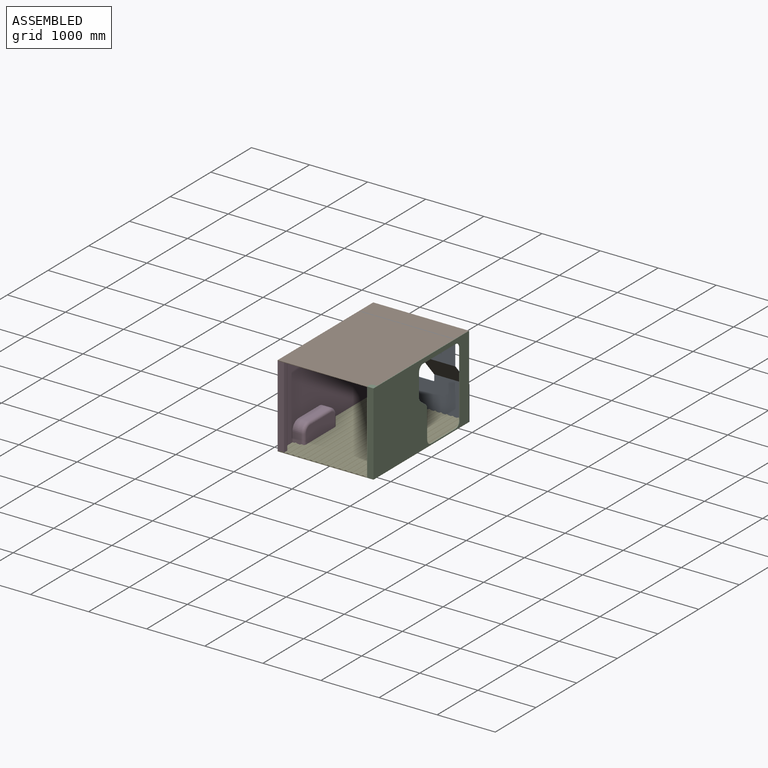
[diagram: assembled view]
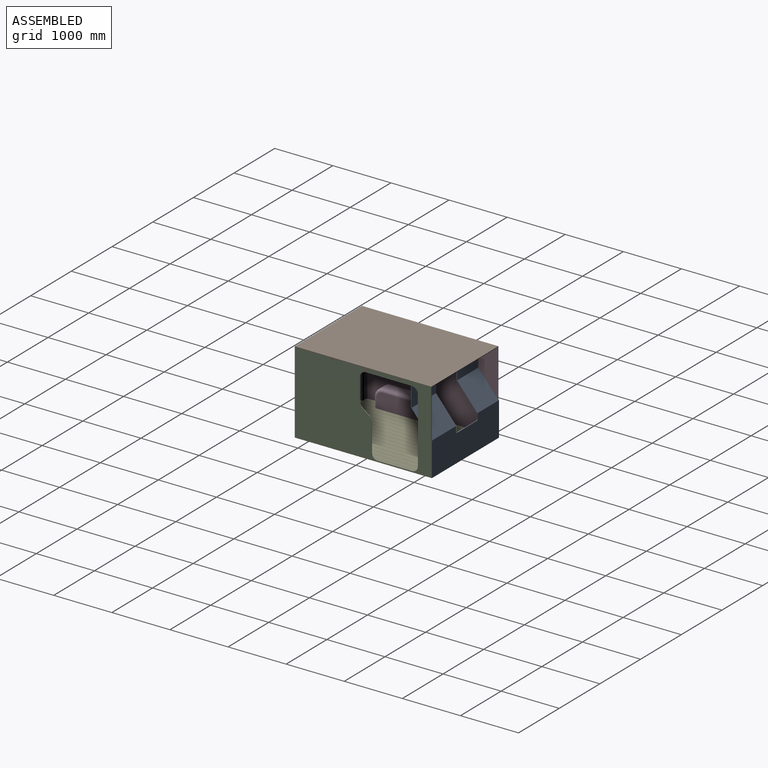
[diagram: assembled view, second angle]
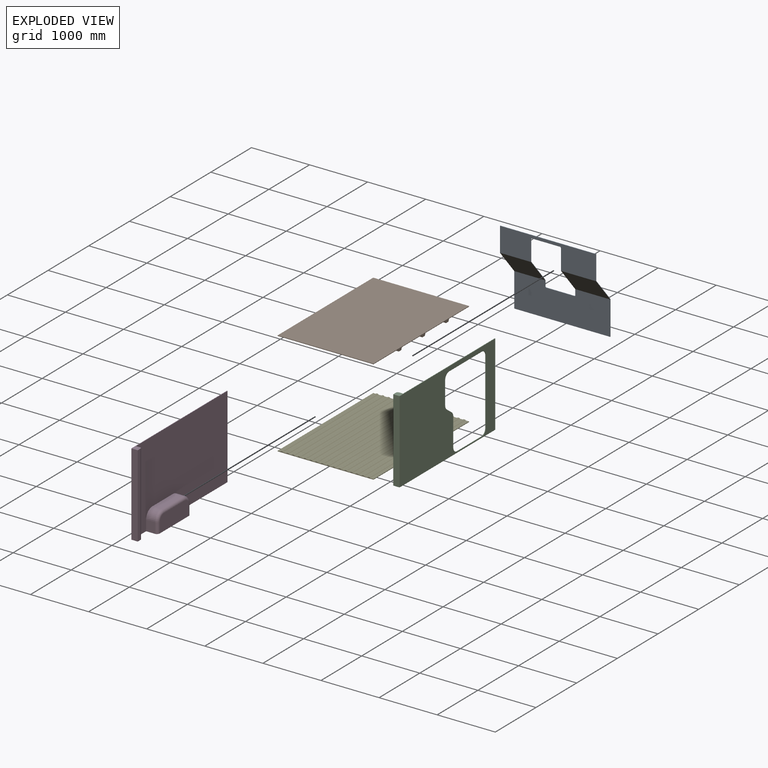
[diagram: exploded view]
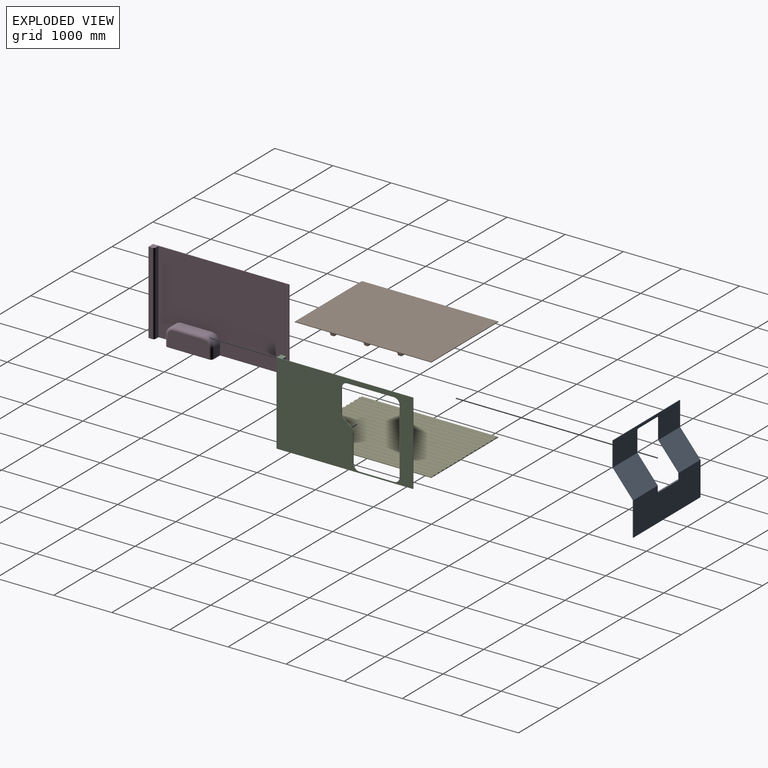
[diagram: exploded view, second angle]
ASSEMBLY  parts=5 mates=12
PART A: 20 faces, bbox 360x1650x1420 mm
  f0: plane 600x417.11mm, normal (0.77,0,0.64), area 326702mm2, adj f4,f6,f10,f15
  f1: plane 1650x420mm, normal (-1,0,0), area 500771.7mm2, adj f2,f7,f8,f10,f11,f12,f13,f15
  f2: plane 600x417.11mm, normal (-0.77,0,-0.64), area 326702mm2, adj f1,f9,f10,f15
  f3: plane 1650x10mm, normal (0,0,-1), area 16500mm2, adj f4,f9,f10,f11
  f4: plane 1650x582.89mm, normal (1,0,0), area 903233.1mm2, adj f0,f3,f5,f10,f11,f13,f14,f15
  f5: plane 530x417.11mm, normal (0.77,0,0.64), area 288586.8mm2, adj f4,f6,f11,f13
  f6: plane 1650x420mm, normal (1,0,0), area 500771.7mm2, adj f0,f5,f7,f10,f11,f12,f13,f15
  f7: plane 1650x10mm, normal (0,0,1), area 16500mm2, adj f1,f6,f10,f11
  f8: plane 530x417.11mm, normal (-0.77,0,-0.64), area 288586.8mm2, adj f1,f9,f11,f13
  f9: plane 1650x582.89mm, normal (-1,0,0), area 903233.1mm2, adj f2,f3,f8,f10,f11,f13,f14,f15
  f10: plane 1420x360mm, normal (0,-1,0), area 14200mm2, adj f0,f1,f2,f3,f4,f6,f7,f9
  f11: plane 1420x360mm, normal (0,1,0), area 14200mm2, adj f1,f3,f4,f5,f6,f7,f8,f9
  f12: plane 480x10mm, normal (0,0,-1), area 4800mm2, adj f1,f6,f16,f17
  f13: plane 860x360mm, normal (0,-1,0), area 8600mm2, adj f1,f4,f5,f6,f8,f9,f16,f18
  f14: plane 480x10mm, normal (0,0,1), area 4800mm2, adj f4,f9,f18,f19
  f15: plane 860x360mm, normal (0,1,0), area 8600mm2, adj f0,f1,f2,f4,f6,f9,f17,f19
  f16: cylinder r=20mm len=20mm, axis (-1,0,0), area 314.2mm2, adj f1,f6,f12,f13
  f17: cylinder r=20mm len=20mm, axis (1,0,0), area 314.2mm2, adj f1,f6,f12,f15
  f18: cylinder r=20mm len=20mm, axis (1,0,0), area 314.2mm2, adj f4,f9,f13,f14
  f19: cylinder r=20mm len=20mm, axis (-1,0,0), area 314.2mm2, adj f4,f9,f14,f15
PART B: 24 faces, bbox 1650x2350x50 mm
  f0: plane 1650x460mm, normal (0,0,-1), area 759000mm2, adj f3,f5,f13,f23
  f1: plane 1650x590mm, normal (0,0,-1), area 973500mm2, adj f3,f4,f5,f17
  f2: plane 1650x460mm, normal (0,0,-1), area 759000mm2, adj f3,f5,f19,f21
  f3: plane 2350x50mm, normal (-1,0,0), area 33100mm2, adj f0,f1,f2,f4,f6,f7,f8,f9
  f4: plane 1650x10mm, normal (0,-1,0), area 16500mm2, adj f1,f3,f5,f7
  f5: plane 2350x50mm, normal (1,0,0), area 33100mm2, adj f0,f1,f2,f4,f6,f7,f8,f9
  f6: plane 1650x10mm, normal (0,1,0), area 16500mm2, adj f3,f5,f7,f8
  f7: plane 2350x1650mm, normal (0,0,1), area 3877500mm2, adj f3,f4,f5,f6
  f8: plane 1650x480mm, normal (0,0,-1), area 792000mm2, adj f3,f5,f6,f15
  f9: plane 1650x40mm, normal (0,0,-1), area 66000mm2, adj f3,f5,f20,f22
  f10: plane 1650x40mm, normal (0,0,-1), area 66000mm2, adj f3,f5,f16,f18
  f11: plane 1650x40mm, normal (0,0,-1), area 66000mm2, adj f3,f5,f12,f14
  f12: cylinder r=20mm len=1650mm, axis (1,0,0), area 51836.3mm2, adj f3,f5,f11,f13
  f13: cylinder r=20mm len=1650mm, axis (1,0,0), area 51836.3mm2, adj f0,f3,f5,f12
  f14: cylinder r=20mm len=1650mm, axis (-1,0,0), area 51836.3mm2, adj f3,f5,f11,f15
  f15: cylinder r=20mm len=1650mm, axis (-1,0,0), area 51836.3mm2, adj f3,f5,f8,f14
  f16: cylinder r=20mm len=1650mm, axis (1,0,0), area 51836.3mm2, adj f3,f5,f10,f17
  f17: cylinder r=20mm len=1650mm, axis (1,0,0), area 51836.3mm2, adj f1,f3,f5,f16
  f18: cylinder r=20mm len=1650mm, axis (-1,0,0), area 51836.3mm2, adj f3,f5,f10,f19
  f19: cylinder r=20mm len=1650mm, axis (-1,0,0), area 51836.3mm2, adj f2,f3,f5,f18
  f20: cylinder r=20mm len=1650mm, axis (1,0,0), area 51836.3mm2, adj f3,f5,f9,f21
  f21: cylinder r=20mm len=1650mm, axis (1,0,0), area 51836.3mm2, adj f2,f3,f5,f20
  f22: cylinder r=20mm len=1650mm, axis (-1,0,0), area 51836.3mm2, adj f3,f5,f9,f23
  f23: cylinder r=20mm len=1650mm, axis (-1,0,0), area 51836.3mm2, adj f0,f3,f5,f22
PART C: 32 faces, bbox 210x2350x1420 mm
  f0: plane 2250x1420mm, normal (-1,0,0), area 1766941.2mm2, adj f3,f4,f5,f6,f10,f12,f14,f16
  f1: plane 2350x1420mm, normal (1,0,0), area 2166584.1mm2, adj f6,f14,f15,f16,f20,f21,f22,f23
  f2: plane 710x280mm, normal (-1,0,0), area 194508mm2, adj f6,f7,f8,f9,f11,f13
  f3: plane 180x150mm, normal (0,-1,0), area 27000mm2, adj f0,f6,f9,f12
  f4: plane 180x150mm, normal (0,1,0), area 27000mm2, adj f0,f6,f7,f10
  f5: plane 510x150mm, normal (0,0,1), area 76500mm2, adj f0,f8,f10,f12
  f6: plane 2350x210mm, normal (0,0,-1), area 194233.8mm2, adj f0,f1,f2,f3,f4,f7,f9,f14
  f7: cylinder r=50mm len=180mm, axis (0,0,1), area 14137.2mm2, adj f2,f4,f6,f11
  f8: cylinder r=50mm len=510mm, axis (0,-1,0), area 40055.3mm2, adj f2,f5,f11,f13
  f9: cylinder r=50mm len=180mm, axis (0,0,-1), area 14137.2mm2, adj f2,f3,f6,f13
  f10: cylinder r=150mm len=150mm, axis (-1,0,0), area 35342.9mm2, adj f0,f4,f5,f11
  f11: torus R=100mm, axis (1,0,0), area 16264mm2, adj f2,f7,f8,f10
  f12: cylinder r=150mm len=150mm, axis (1,0,0), area 35342.9mm2, adj f0,f3,f5,f13
  f13: torus R=100mm, axis (1,0,0), area 16264mm2, adj f2,f8,f9,f12
  f14: plane 1420x10mm, normal (0,1,0), area 14200mm2, adj f0,f1,f6,f16
  f15: plane 1420x110mm, normal (0,-1,0), area 156200mm2, adj f1,f6,f16,f18
  f16: plane 2350x110mm, normal (0,0,1), area 33306.9mm2, adj f0,f1,f14,f15,f17,f18,f19
  f17: plane 1420x70mm, normal (0,1,0), area 99400mm2, adj f0,f6,f16,f19
  f18: plane 1420x70mm, normal (-1,0,0), area 99400mm2, adj f6,f15,f16,f19
  f19: cylinder r=30mm len=1420mm, axis (0,0,1), area 66915.9mm2, adj f6,f16,f17,f18
  f20: plane 390x10mm, normal (0,1,0), area 3900mm2, adj f0,f1,f26,f30
  f21: plane 800x10mm, normal (0,0,-1), area 8000mm2, adj f0,f1,f26,f27
  f22: plane 1120x10mm, normal (0,-1,0), area 11200mm2, adj f0,f1,f27,f28
  f23: plane 600x10mm, normal (0,0,1), area 6000mm2, adj f0,f1,f28,f29
  f24: plane 480x10mm, normal (0,1,0), area 4800mm2, adj f0,f1,f29,f31
  f25: plane 120x90mm, normal (0,0.6,0.8), area 1500mm2, adj f0,f1,f30,f31
  f26: cylinder r=100mm len=100mm, axis (1,0,0), area 1570.8mm2, adj f0,f1,f20,f21
  f27: cylinder r=100mm len=100mm, axis (1,0,0), area 1570.8mm2, adj f0,f1,f21,f22
  f28: cylinder r=100mm len=100mm, axis (1,0,0), area 1570.8mm2, adj f0,f1,f22,f23
  f29: cylinder r=100mm len=100mm, axis (1,0,0), area 1570.8mm2, adj f0,f1,f23,f24
  f30: cylinder r=100mm len=80mm, axis (1,0,0), area 927.3mm2, adj f0,f1,f20,f25
  f31: cylinder r=100mm len=80mm, axis (-1,0,0), area 927.3mm2, adj f0,f1,f24,f25
PART D: 20 faces, bbox 210x2350x1420 mm
  f0: plane 710x280mm, normal (1,0,0), area 194508mm2, adj f4,f5,f6,f7,f9,f11
  f1: plane 180x150mm, normal (0,-1,0), area 27000mm2, adj f4,f7,f10,f16
  f2: plane 180x150mm, normal (0,1,0), area 27000mm2, adj f4,f5,f8,f16
  f3: plane 510x150mm, normal (0,0,1), area 76500mm2, adj f6,f8,f10,f16
  f4: plane 2350x210mm, normal (0,0,-1), area 194233.8mm2, adj f0,f1,f2,f5,f7,f12,f13,f15
  f5: cylinder r=50mm len=180mm, axis (0,0,1), area 14137.2mm2, adj f0,f2,f4,f9
  f6: cylinder r=50mm len=510mm, axis (0,-1,0), area 40055.3mm2, adj f0,f3,f9,f11
  f7: cylinder r=50mm len=180mm, axis (0,0,-1), area 14137.2mm2, adj f0,f1,f4,f11
  f8: cylinder r=150mm len=150mm, axis (1,0,0), area 35342.9mm2, adj f2,f3,f9,f16
  f9: torus R=100mm, axis (-1,0,0), area 16264mm2, adj f0,f5,f6,f8
  f10: cylinder r=150mm len=150mm, axis (-1,0,0), area 35342.9mm2, adj f1,f3,f11,f16
  f11: torus R=100mm, axis (-1,0,0), area 16264mm2, adj f0,f6,f7,f10
  f12: plane 1420x10mm, normal (0,1,0), area 14200mm2, adj f4,f14,f15,f16
  f13: plane 1420x110mm, normal (0,-1,0), area 156200mm2, adj f4,f14,f15,f18
  f14: plane 2350x110mm, normal (0,0,1), area 33306.9mm2, adj f12,f13,f15,f16,f17,f18,f19
  f15: plane 2350x1420mm, normal (-1,0,0), area 3337000mm2, adj f4,f12,f13,f14
  f16: plane 2250x1420mm, normal (1,0,0), area 2937357.1mm2, adj f1,f2,f3,f4,f8,f10,f12,f14
  f17: plane 1420x70mm, normal (0,1,0), area 99400mm2, adj f4,f14,f16,f19
  f18: plane 1420x70mm, normal (1,0,0), area 99400mm2, adj f4,f13,f14,f19
  f19: cylinder r=30mm len=1420mm, axis (0,0,-1), area 66915.9mm2, adj f4,f14,f17,f18
PART E: 102 faces, bbox 1650x2350x20 mm
  f0: plane 2350x45.36mm, normal (0,0,1), area 106593.6mm2, adj f17,f19,f98,f101
  f1: plane 2350x45.36mm, normal (0,0,1), area 106593.6mm2, adj f17,f19,f96,f99
  f2: plane 2350x45.36mm, normal (0,0,1), area 106593.6mm2, adj f17,f19,f94,f97
  f3: plane 2350x45.36mm, normal (0,0,1), area 106593.6mm2, adj f17,f19,f92,f95
  f4: plane 2350x45.36mm, normal (0,0,1), area 106593.6mm2, adj f17,f19,f90,f93
  f5: plane 2350x45.36mm, normal (0,0,1), area 106593.6mm2, adj f17,f19,f86,f89
  f6: plane 2350x45.36mm, normal (0,0,1), area 106593.6mm2, adj f17,f19,f82,f85
  f7: plane 2350x45.36mm, normal (0,0,1), area 106593.6mm2, adj f17,f19,f88,f91
  f8: plane 2350x45.36mm, normal (0,0,1), area 106593.6mm2, adj f17,f19,f84,f87
  f9: plane 2350x45.36mm, normal (0,0,1), area 106593.6mm2, adj f17,f19,f80,f83
  f10: plane 2350x45.36mm, normal (0,0,1), area 106593.6mm2, adj f17,f19,f78,f81
  f11: plane 2350x45.36mm, normal (0,0,1), area 106593.6mm2, adj f17,f19,f72,f75
  f12: plane 2350x52.68mm, normal (0,0,1), area 123796.8mm2, adj f17,f18,f19,f71
  f13: plane 2350x45.36mm, normal (0,0,1), area 106593.6mm2, adj f17,f19,f70,f73
  f14: plane 2350x45.36mm, normal (0,0,1), area 106593.6mm2, adj f17,f19,f76,f79
  f15: plane 2350x45.36mm, normal (0,0,1), area 106593.6mm2, adj f17,f19,f74,f77
  f16: plane 2350x10mm, normal (-1,0,0), area 23500mm2, adj f17,f19,f20,f21
  f17: plane 1650x20mm, normal (0,-1,0), area 22471.3mm2, adj f0,f1,f2,f3,f4,f5,f6,f7
  f18: plane 2350x10mm, normal (1,0,0), area 23500mm2, adj f12,f17,f19,f21
  f19: plane 1650x20mm, normal (0,1,0), area 22471.3mm2, adj f0,f1,f2,f3,f4,f5,f6,f7
  f20: plane 2350x42.68mm, normal (0,0,1), area 100296.8mm2, adj f16,f17,f19,f100
  f21: plane 2350x1650mm, normal (0,0,-1), area 3877500mm2, adj f16,f17,f18,f19
  f22: plane 2350x20mm, normal (0,0,1), area 47000mm2, adj f17,f19,f44,f45
  f23: plane 2350x20mm, normal (0,0,1), area 47000mm2, adj f17,f19,f46,f47
  f24: plane 2350x20mm, normal (0,0,1), area 47000mm2, adj f17,f19,f40,f41
  f25: plane 2350x20mm, normal (0,0,1), area 47000mm2, adj f17,f19,f38,f39
  f26: plane 2350x20mm, normal (0,0,1), area 47000mm2, adj f17,f19,f42,f43
  f27: plane 2350x20mm, normal (0,0,1), area 47000mm2, adj f17,f19,f48,f49
  f28: plane 2350x20mm, normal (0,0,1), area 47000mm2, adj f17,f19,f50,f51
  f29: plane 2350x20mm, normal (0,0,1), area 47000mm2, adj f17,f19,f54,f55
  f30: plane 2350x20mm, normal (0,0,1), area 47000mm2, adj f17,f19,f58,f59
  f31: plane 2350x20mm, normal (0,0,1), area 47000mm2, adj f17,f19,f52,f53
  f32: plane 2350x20mm, normal (0,0,1), area 47000mm2, adj f17,f19,f56,f57
  f33: plane 2350x20mm, normal (0,0,1), area 47000mm2, adj f17,f19,f60,f61
  f34: plane 2350x20mm, normal (0,0,1), area 47000mm2, adj f17,f19,f62,f63
  f35: plane 2350x20mm, normal (0,0,1), area 47000mm2, adj f17,f19,f64,f65
  f36: plane 2350x20mm, normal (0,0,1), area 47000mm2, adj f17,f19,f66,f67
  f37: plane 2350x20mm, normal (0,0,1), area 47000mm2, adj f17,f19,f68,f69
  f38: cylinder r=10mm len=2350mm, axis (0,1,0), area 24609.1mm2, adj f17,f19,f25,f70
  f39: cylinder r=10mm len=2350mm, axis (0,-1,0), area 24609.1mm2, adj f17,f19,f25,f71
  f40: cylinder r=10mm len=2350mm, axis (0,1,0), area 24609.1mm2, adj f17,f19,f24,f72
  f41: cylinder r=10mm len=2350mm, axis (0,-1,0), area 24609.1mm2, adj f17,f19,f24,f73
  f42: cylinder r=10mm len=2350mm, axis (0,1,0), area 24609.1mm2, adj f17,f19,f26,f74
  f43: cylinder r=10mm len=2350mm, axis (0,-1,0), area 24609.1mm2, adj f17,f19,f26,f75
  f44: cylinder r=10mm len=2350mm, axis (0,1,0), area 24609.1mm2, adj f17,f19,f22,f76
  f45: cylinder r=10mm len=2350mm, axis (0,-1,0), area 24609.1mm2, adj f17,f19,f22,f77
  f46: cylinder r=10mm len=2350mm, axis (0,1,0), area 24609.1mm2, adj f17,f19,f23,f78
  f47: cylinder r=10mm len=2350mm, axis (0,-1,0), area 24609.1mm2, adj f17,f19,f23,f79
  f48: cylinder r=10mm len=2350mm, axis (0,1,0), area 24609.1mm2, adj f17,f19,f27,f80
  f49: cylinder r=10mm len=2350mm, axis (0,-1,0), area 24609.1mm2, adj f17,f19,f27,f81
  f50: cylinder r=10mm len=2350mm, axis (0,1,0), area 24609.1mm2, adj f17,f19,f28,f82
  f51: cylinder r=10mm len=2350mm, axis (0,-1,0), area 24609.1mm2, adj f17,f19,f28,f83
  f52: cylinder r=10mm len=2350mm, axis (0,1,0), area 24609.1mm2, adj f17,f19,f31,f84
  f53: cylinder r=10mm len=2350mm, axis (0,-1,0), area 24609.1mm2, adj f17,f19,f31,f85
  f54: cylinder r=10mm len=2350mm, axis (0,1,0), area 24609.1mm2, adj f17,f19,f29,f86
  f55: cylinder r=10mm len=2350mm, axis (0,-1,0), area 24609.1mm2, adj f17,f19,f29,f87
  f56: cylinder r=10mm len=2350mm, axis (0,1,0), area 24609.1mm2, adj f17,f19,f32,f88
  f57: cylinder r=10mm len=2350mm, axis (0,-1,0), area 24609.1mm2, adj f17,f19,f32,f89
  f58: cylinder r=10mm len=2350mm, axis (0,1,0), area 24609.1mm2, adj f17,f19,f30,f90
  f59: cylinder r=10mm len=2350mm, axis (0,-1,0), area 24609.1mm2, adj f17,f19,f30,f91
  f60: cylinder r=10mm len=2350mm, axis (0,1,0), area 24609.1mm2, adj f17,f19,f33,f92
  f61: cylinder r=10mm len=2350mm, axis (0,-1,0), area 24609.1mm2, adj f17,f19,f33,f93
  f62: cylinder r=10mm len=2350mm, axis (0,1,0), area 24609.1mm2, adj f17,f19,f34,f94
  f63: cylinder r=10mm len=2350mm, axis (0,-1,0), area 24609.1mm2, adj f17,f19,f34,f95
  f64: cylinder r=10mm len=2350mm, axis (0,1,0), area 24609.1mm2, adj f17,f19,f35,f96
  f65: cylinder r=10mm len=2350mm, axis (0,-1,0), area 24609.1mm2, adj f17,f19,f35,f97
  f66: cylinder r=10mm len=2350mm, axis (0,1,0), area 24609.1mm2, adj f17,f19,f36,f98
  f67: cylinder r=10mm len=2350mm, axis (0,-1,0), area 24609.1mm2, adj f17,f19,f36,f99
  f68: cylinder r=10mm len=2350mm, axis (0,1,0), area 24609.1mm2, adj f17,f19,f37,f100
  f69: cylinder r=10mm len=2350mm, axis (0,-1,0), area 24609.1mm2, adj f17,f19,f37,f101
  f70: cylinder r=10mm len=2350mm, axis (0,1,0), area 24609.1mm2, adj f13,f17,f19,f38
  f71: cylinder r=10mm len=2350mm, axis (0,-1,0), area 24609.1mm2, adj f12,f17,f19,f39
  f72: cylinder r=10mm len=2350mm, axis (0,1,0), area 24609.1mm2, adj f11,f17,f19,f40
  f73: cylinder r=10mm len=2350mm, axis (0,-1,0), area 24609.1mm2, adj f13,f17,f19,f41
  f74: cylinder r=10mm len=2350mm, axis (0,1,0), area 24609.1mm2, adj f15,f17,f19,f42
  f75: cylinder r=10mm len=2350mm, axis (0,-1,0), area 24609.1mm2, adj f11,f17,f19,f43
  f76: cylinder r=10mm len=2350mm, axis (0,1,0), area 24609.1mm2, adj f14,f17,f19,f44
  f77: cylinder r=10mm len=2350mm, axis (0,-1,0), area 24609.1mm2, adj f15,f17,f19,f45
  f78: cylinder r=10mm len=2350mm, axis (0,1,0), area 24609.1mm2, adj f10,f17,f19,f46
  f79: cylinder r=10mm len=2350mm, axis (0,-1,0), area 24609.1mm2, adj f14,f17,f19,f47
  f80: cylinder r=10mm len=2350mm, axis (0,1,0), area 24609.1mm2, adj f9,f17,f19,f48
  f81: cylinder r=10mm len=2350mm, axis (0,-1,0), area 24609.1mm2, adj f10,f17,f19,f49
  f82: cylinder r=10mm len=2350mm, axis (0,1,0), area 24609.1mm2, adj f6,f17,f19,f50
  f83: cylinder r=10mm len=2350mm, axis (0,-1,0), area 24609.1mm2, adj f9,f17,f19,f51
  f84: cylinder r=10mm len=2350mm, axis (0,1,0), area 24609.1mm2, adj f8,f17,f19,f52
  f85: cylinder r=10mm len=2350mm, axis (0,-1,0), area 24609.1mm2, adj f6,f17,f19,f53
  f86: cylinder r=10mm len=2350mm, axis (0,1,0), area 24609.1mm2, adj f5,f17,f19,f54
  f87: cylinder r=10mm len=2350mm, axis (0,-1,0), area 24609.1mm2, adj f8,f17,f19,f55
  f88: cylinder r=10mm len=2350mm, axis (0,1,0), area 24609.1mm2, adj f7,f17,f19,f56
  f89: cylinder r=10mm len=2350mm, axis (0,-1,0), area 24609.1mm2, adj f5,f17,f19,f57
  f90: cylinder r=10mm len=2350mm, axis (0,1,0), area 24609.1mm2, adj f4,f17,f19,f58
  f91: cylinder r=10mm len=2350mm, axis (0,-1,0), area 24609.1mm2, adj f7,f17,f19,f59
  f92: cylinder r=10mm len=2350mm, axis (0,1,0), area 24609.1mm2, adj f3,f17,f19,f60
  f93: cylinder r=10mm len=2350mm, axis (0,-1,0), area 24609.1mm2, adj f4,f17,f19,f61
  f94: cylinder r=10mm len=2350mm, axis (0,1,0), area 24609.1mm2, adj f2,f17,f19,f62
  f95: cylinder r=10mm len=2350mm, axis (0,-1,0), area 24609.1mm2, adj f3,f17,f19,f63
  f96: cylinder r=10mm len=2350mm, axis (0,1,0), area 24609.1mm2, adj f1,f17,f19,f64
  f97: cylinder r=10mm len=2350mm, axis (0,-1,0), area 24609.1mm2, adj f2,f17,f19,f65
  f98: cylinder r=10mm len=2350mm, axis (0,1,0), area 24609.1mm2, adj f0,f17,f19,f66
  f99: cylinder r=10mm len=2350mm, axis (0,-1,0), area 24609.1mm2, adj f1,f17,f19,f67
  f100: cylinder r=10mm len=2350mm, axis (0,1,0), area 24609.1mm2, adj f17,f19,f20,f68
  f101: cylinder r=10mm len=2350mm, axis (0,-1,0), area 24609.1mm2, adj f0,f17,f19,f69
PLACE A rot(axis=(0,0,1),90deg) t=(-825,1185,0)mm
PLACE B t=(-825,-1175,1410)mm
PLACE C t=(835,-825,0)mm
PLACE D t=(-815,-825,0)mm
PLACE E t=(-825,-1175,0)mm fixed
MATE planar E.f21 <-> A.f3  axis (0,0,-1) through (0,0,0)mm
MATE planar A.f9 <-> E.f68  axis (0,-1,0) through (2.27,1175,276.21)mm
MATE planar E.f18 <-> C.f1  axis (1,0,0) through (825,0,5)mm
MATE planar E.f39 <-> C.f15  axis (0,-1,0) through (755,-1175,10)mm
MATE planar D.f13 <-> E.f69  axis (0,-1,0) through (-770,-1175,710)mm
MATE planar D.f14 <-> B.f7  axis (0,0,1) through (-804.06,-331.5,1420)mm
MATE planar D.f15 <-> E.f16  axis (-1,0,0) through (-825,0,710)mm
MATE planar E.f21 <-> D.f4  axis (0,0,-1) through (0,0,0)mm
MATE planar B.f6 <-> D.f12  axis (0,1,0) through (0,1175,1415)mm
MATE planar A.f11 <-> D.f15  axis (-1,0,0) through (-825,1025.07,710)mm
MATE planar E.f21 <-> C.f6  axis (0,0,-1) through (0,0,0)mm
MATE planar B.f3 <-> D.f15  axis (-1,0,0) through (-825,15.95,1408.23)mm
